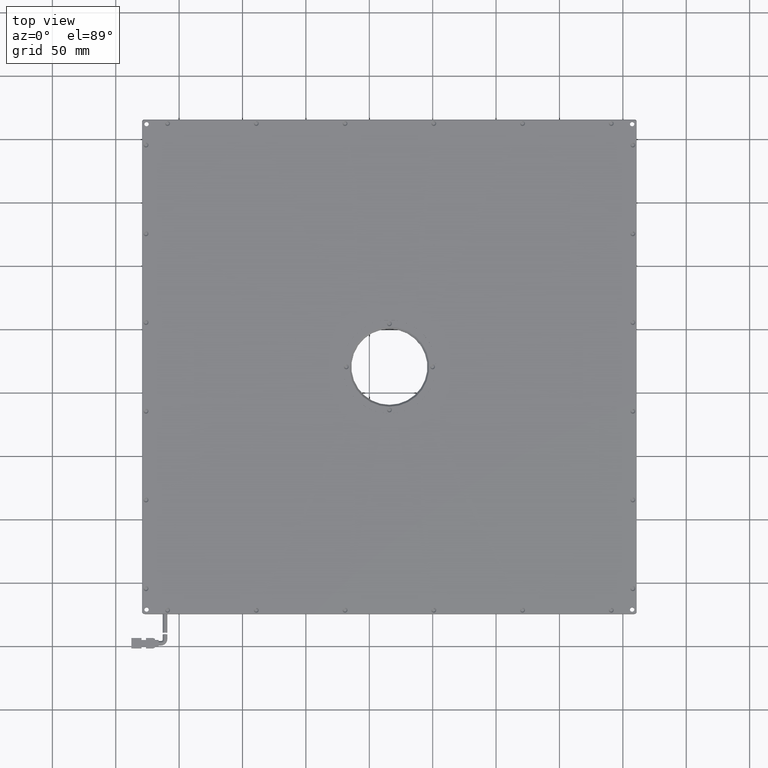
[diagram: clean part render]
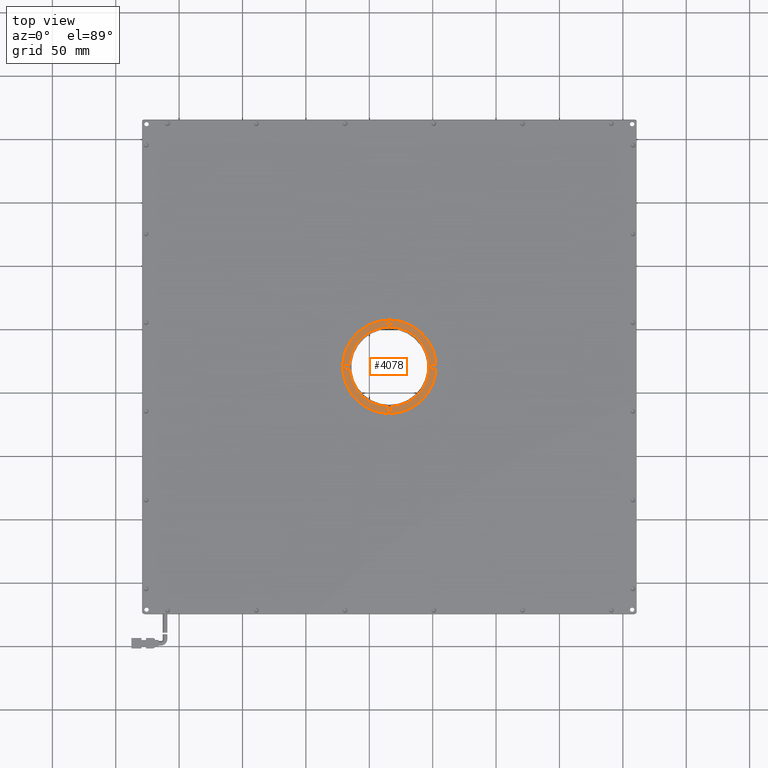
[diagram: same view with one face highlighted and labeled with its STEP entity id]
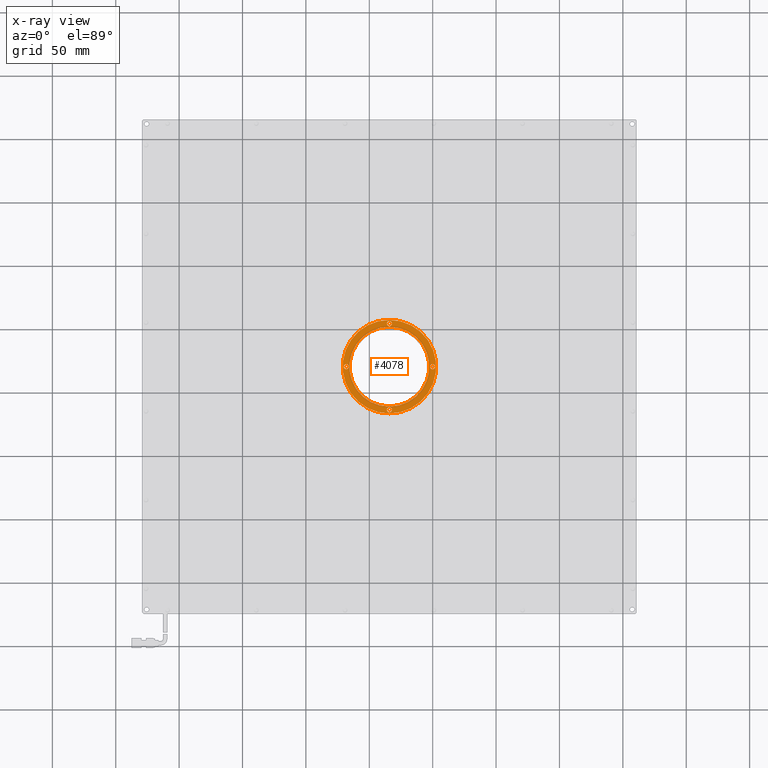
[diagram: x-ray of the same camera — body ghosted, the highlighted face saturated]
A machine part, top view. The second image highlights one B-rep face of the part: STEP entity #4078.
The next image is the same camera in x-ray: the body ghosted, the highlighted face saturated — about 0% of this face is hidden behind the body in this view.
In plain terms, the highlighted planar face has unit normal (0, 0, -1).
Its self-contained STEP definition (entity closure, byte-faithful):
#392 = CIRCLE ( 'NONE', #4062, 31.49999999999998600 ) ;
#519 = CARTESIAN_POINT ( 'NONE',  ( -68.14840179853887000, 20.42297297297205100, 8.249999999980790500 ) ) ;
#664 = DIRECTION ( 'NONE',  ( 2.168404344969532500E-016, 0.0000000000000000000, 1.000000000000000000 ) ) ;
#878 = DIRECTION ( 'NONE',  ( 2.168404345083914800E-016, 0.0000000000000000000, 1.000000000000000000 ) ) ;
#1251 = VERTEX_POINT ( 'NONE', #10514 ) ;
#1397 = CARTESIAN_POINT ( 'NONE',  ( -34.14840179853886300, -16.47702702702795800, 8.249999999999996400 ) ) ;
#1462 = ORIENTED_EDGE ( 'NONE', *, *, #7119, .F. ) ;
#1699 = DIRECTION ( 'NONE',  ( 0.0000000000000000000, -1.000000000000000000, 0.0000000000000000000 ) ) ;
#2075 = DIRECTION ( 'NONE',  ( 1.000000000000000000, 0.0000000000000000000, 0.0000000000000000000 ) ) ;
#2079 = FACE_BOUND ( 'NONE', #10461, .T. ) ;
#2294 = CARTESIAN_POINT ( 'NONE',  ( -34.14840179853887000, 20.42297297297205100, 8.250000000000003600 ) ) ;
#2307 = EDGE_CURVE ( 'NONE', #4382, #8983, #12123, .T. ) ;
#2327 = FACE_BOUND ( 'NONE', #18106, .T. ) ;
#2427 = EDGE_CURVE ( 'NONE', #5036, #12089, #8092, .T. ) ;
#2758 = VERTEX_POINT ( 'NONE', #8401 ) ;
#2831 = AXIS2_PLACEMENT_3D ( 'NONE', #15455, #11867, #3517 ) ;
#2938 = ORIENTED_EDGE ( 'NONE', *, *, #6098, .F. ) ;
#3003 = ORIENTED_EDGE ( 'NONE', *, *, #4992, .F. ) ;
#3041 = AXIS2_PLACEMENT_3D ( 'NONE', #17248, #15624, #19166 ) ;
#3238 = ORIENTED_EDGE ( 'NONE', *, *, #10233, .F. ) ;
#3274 = VERTEX_POINT ( 'NONE', #20883 ) ;
#3360 = CARTESIAN_POINT ( 'NONE',  ( -68.14840179853887000, 20.42297297297205100, 8.249999999980790500 ) ) ;
#3397 = FACE_BOUND ( 'NONE', #10044, .T. ) ;
#3517 = DIRECTION ( 'NONE',  ( 0.0000000000000000000, 1.000000000000000000, 0.0000000000000000000 ) ) ;
#3595 = CARTESIAN_POINT ( 'NONE',  ( -34.14840179853887000, 20.42297297297205100, 8.250000000000003600 ) ) ;
#4062 = AXIS2_PLACEMENT_3D ( 'NONE', #3595, #13866, #13567 ) ;
#4078 = ADVANCED_FACE ( 'NONE', ( #6577, #2079, #20988, #3397, #2327, #17273 ), #5317, .F. ) ;
#4382 = VERTEX_POINT ( 'NONE', #21670 ) ;
#4500 = CARTESIAN_POINT ( 'NONE',  ( -34.14840179853887000, 20.42297297297205100, 8.249999999999996400 ) ) ;
#4584 = CIRCLE ( 'NONE', #21787, 2.000000000074581200 ) ;
#4635 = AXIS2_PLACEMENT_3D ( 'NONE', #519, #14215, #7438 ) ;
#4992 = EDGE_CURVE ( 'NONE', #16777, #8087, #392, .T. ) ;
#5028 = DIRECTION ( 'NONE',  ( 2.168404345083914800E-016, 0.0000000000000000000, 1.000000000000000000 ) ) ;
#5036 = VERTEX_POINT ( 'NONE', #17613 ) ;
#5306 = CIRCLE ( 'NONE', #19750, 1.999999999952706300 ) ;
#5317 = PLANE ( 'NONE',  #3041 ) ;
#5517 = DIRECTION ( 'NONE',  ( 1.000000000000000000, 0.0000000000000000000, 0.0000000000000000000 ) ) ;
#5817 = EDGE_CURVE ( 'NONE', #17858, #2758, #9639, .T. ) ;
#5847 = ORIENTED_EDGE ( 'NONE', *, *, #10017, .F. ) ;
#6035 = CIRCLE ( 'NONE', #2831, 36.90000000000001300 ) ;
#6098 = EDGE_CURVE ( 'NONE', #3274, #1251, #4584, .T. ) ;
#6570 = ORIENTED_EDGE ( 'NONE', *, *, #5817, .F. ) ;
#6577 = FACE_OUTER_BOUND ( 'NONE', #10483, .T. ) ;
#6672 = EDGE_CURVE ( 'NONE', #1251, #3274, #10716, .T. ) ;
#6753 = DIRECTION ( 'NONE',  ( 1.000000000000000000, 0.0000000000000000000, 0.0000000000000000000 ) ) ;
#6881 = CARTESIAN_POINT ( 'NONE',  ( -0.1484017985388663700, 20.42297297297205100, 8.249999999980790500 ) ) ;
#7119 = EDGE_CURVE ( 'NONE', #8087, #16777, #19964, .T. ) ;
#7189 = CARTESIAN_POINT ( 'NONE',  ( -34.14840179853875000, 54.42297297297204800, 8.250000000037633900 ) ) ;
#7355 = CIRCLE ( 'NONE', #20717, 2.000000000001361600 ) ;
#7438 = DIRECTION ( 'NONE',  ( 1.000000000000000000, 0.0000000000000000000, 0.0000000000000000000 ) ) ;
#7731 = DIRECTION ( 'NONE',  ( 2.168404344969532500E-016, 0.0000000000000000000, 1.000000000000000000 ) ) ;
#8087 = VERTEX_POINT ( 'NONE', #20040 ) ;
#8092 = CIRCLE ( 'NONE', #10382, 2.000000000001361600 ) ;
#8395 = CARTESIAN_POINT ( 'NONE',  ( -70.14840179849157700, 20.42297297297205100, 8.249999999980790500 ) ) ;
#8401 = CARTESIAN_POINT ( 'NONE',  ( -34.14840179853887000, 57.32297297297206700, 8.249999999999996400 ) ) ;
#8624 = DIRECTION ( 'NONE',  ( 1.000000000000000000, 0.0000000000000000000, 0.0000000000000000000 ) ) ;
#8983 = VERTEX_POINT ( 'NONE', #8395 ) ;
#9094 = CARTESIAN_POINT ( 'NONE',  ( -34.14840179853875000, 54.42297297297204800, 8.250000000037633900 ) ) ;
#9636 = ORIENTED_EDGE ( 'NONE', *, *, #6672, .F. ) ;
#9639 = CIRCLE ( 'NONE', #12074, 36.90000000000001300 ) ;
#10017 = EDGE_CURVE ( 'NONE', #8983, #4382, #17780, .T. ) ;
#10044 = EDGE_LOOP ( 'NONE', ( #9636, #2938 ) ) ;
#10233 = EDGE_CURVE ( 'NONE', #12089, #5036, #7355, .T. ) ;
#10382 = AXIS2_PLACEMENT_3D ( 'NONE', #12858, #7731, #16317 ) ;
#10461 = EDGE_LOOP ( 'NONE', ( #3003, #1462 ) ) ;
#10483 = EDGE_LOOP ( 'NONE', ( #11179, #6570 ) ) ;
#10514 = CARTESIAN_POINT ( 'NONE',  ( -32.14840179846417100, 54.42297297297204800, 8.250000000037633900 ) ) ;
#10638 = CARTESIAN_POINT ( 'NONE',  ( -34.14840179853922600, -13.57702702702795100, 8.249999999923947100 ) ) ;
#10643 = DIRECTION ( 'NONE',  ( 2.168404344828519100E-016, 0.0000000000000000000, 1.000000000000000000 ) ) ;
#10716 = CIRCLE ( 'NONE', #13966, 2.000000000074581200 ) ;
#10792 = DIRECTION ( 'NONE',  ( 1.000000000000000000, 0.0000000000000000000, 0.0000000000000000000 ) ) ;
#10944 = CARTESIAN_POINT ( 'NONE',  ( 1.851598201413839500, 20.42297297297205100, 8.249999999980790500 ) ) ;
#11179 = ORIENTED_EDGE ( 'NONE', *, *, #18457, .F. ) ;
#11867 = DIRECTION ( 'NONE',  ( 0.0000000000000000000, 0.0000000000000000000, -1.000000000000000000 ) ) ;
#11891 = DIRECTION ( 'NONE',  ( 0.0000000000000000000, 0.0000000000000000000, 1.000000000000000000 ) ) ;
#12074 = AXIS2_PLACEMENT_3D ( 'NONE', #4500, #18097, #20009 ) ;
#12089 = VERTEX_POINT ( 'NONE', #17506 ) ;
#12123 = CIRCLE ( 'NONE', #4635, 1.999999999952706300 ) ;
#12266 = DIRECTION ( 'NONE',  ( 2.168404344828519100E-016, 0.0000000000000000000, 1.000000000000000000 ) ) ;
#12858 = CARTESIAN_POINT ( 'NONE',  ( -34.14840179853922600, -13.57702702702795100, 8.249999999923947100 ) ) ;
#13263 = CARTESIAN_POINT ( 'NONE',  ( -34.14840179853887000, -11.07702702702793500, 8.250000000000003600 ) ) ;
#13369 = DIRECTION ( 'NONE',  ( 1.000000000000000000, 0.0000000000000000000, 0.0000000000000000000 ) ) ;
#13567 = DIRECTION ( 'NONE',  ( 0.0000000000000000000, -1.000000000000000000, 0.0000000000000000000 ) ) ;
#13866 = DIRECTION ( 'NONE',  ( 0.0000000000000000000, 0.0000000000000000000, 1.000000000000000000 ) ) ;
#13966 = AXIS2_PLACEMENT_3D ( 'NONE', #9094, #10643, #10792 ) ;
#14215 = DIRECTION ( 'NONE',  ( 2.168404345083914800E-016, 0.0000000000000000000, 1.000000000000000000 ) ) ;
#14523 = EDGE_CURVE ( 'NONE', #17198, #17165, #21807, .T. ) ;
#14962 = CARTESIAN_POINT ( 'NONE',  ( -0.1484017985388663700, 20.42297297297205100, 8.249999999980790500 ) ) ;
#15455 = CARTESIAN_POINT ( 'NONE',  ( -34.14840179853887000, 20.42297297297205100, 8.249999999999996400 ) ) ;
#15584 = AXIS2_PLACEMENT_3D ( 'NONE', #3360, #18489, #6753 ) ;
#15624 = DIRECTION ( 'NONE',  ( 0.0000000000000000000, 0.0000000000000000000, -1.000000000000000000 ) ) ;
#16140 = AXIS2_PLACEMENT_3D ( 'NONE', #14962, #878, #13369 ) ;
#16317 = DIRECTION ( 'NONE',  ( 1.000000000000000000, 0.0000000000000000000, 0.0000000000000000000 ) ) ;
#16591 = EDGE_LOOP ( 'NONE', ( #17320, #3238 ) ) ;
#16679 = EDGE_LOOP ( 'NONE', ( #18382, #5847 ) ) ;
#16777 = VERTEX_POINT ( 'NONE', #13263 ) ;
#17165 = VERTEX_POINT ( 'NONE', #10944 ) ;
#17198 = VERTEX_POINT ( 'NONE', #21301 ) ;
#17248 = CARTESIAN_POINT ( 'NONE',  ( -4.148401798538859700, 20.42297297297205100, 8.250000000000000000 ) ) ;
#17273 = FACE_BOUND ( 'NONE', #16591, .T. ) ;
#17320 = ORIENTED_EDGE ( 'NONE', *, *, #2427, .F. ) ;
#17506 = CARTESIAN_POINT ( 'NONE',  ( -36.14840179854058300, -13.57702702702795100, 8.249999999923947100 ) ) ;
#17613 = CARTESIAN_POINT ( 'NONE',  ( -32.14840179853786100, -13.57702702702795100, 8.249999999923947100 ) ) ;
#17780 = CIRCLE ( 'NONE', #15584, 1.999999999952706300 ) ;
#17858 = VERTEX_POINT ( 'NONE', #1397 ) ;
#18097 = DIRECTION ( 'NONE',  ( 0.0000000000000000000, 0.0000000000000000000, -1.000000000000000000 ) ) ;
#18106 = EDGE_LOOP ( 'NONE', ( #21150, #20752 ) ) ;
#18382 = ORIENTED_EDGE ( 'NONE', *, *, #2307, .F. ) ;
#18457 = EDGE_CURVE ( 'NONE', #2758, #17858, #6035, .T. ) ;
#18489 = DIRECTION ( 'NONE',  ( 2.168404345083914800E-016, 0.0000000000000000000, 1.000000000000000000 ) ) ;
#19166 = DIRECTION ( 'NONE',  ( 0.0000000000000000000, 1.000000000000000000, 0.0000000000000000000 ) ) ;
#19750 = AXIS2_PLACEMENT_3D ( 'NONE', #6881, #5028, #8624 ) ;
#19964 = CIRCLE ( 'NONE', #21526, 31.49999999999998600 ) ;
#20009 = DIRECTION ( 'NONE',  ( 0.0000000000000000000, 1.000000000000000000, 0.0000000000000000000 ) ) ;
#20040 = CARTESIAN_POINT ( 'NONE',  ( -34.14840179853886300, 51.92297297297203300, 8.250000000000003600 ) ) ;
#20717 = AXIS2_PLACEMENT_3D ( 'NONE', #10638, #664, #5517 ) ;
#20752 = ORIENTED_EDGE ( 'NONE', *, *, #14523, .F. ) ;
#20883 = CARTESIAN_POINT ( 'NONE',  ( -36.14840179861333500, 54.42297297297204800, 8.250000000037633900 ) ) ;
#20988 = FACE_BOUND ( 'NONE', #16679, .T. ) ;
#21004 = EDGE_CURVE ( 'NONE', #17165, #17198, #5306, .T. ) ;
#21150 = ORIENTED_EDGE ( 'NONE', *, *, #21004, .F. ) ;
#21301 = CARTESIAN_POINT ( 'NONE',  ( -2.148401798491573100, 20.42297297297205100, 8.249999999980790500 ) ) ;
#21526 = AXIS2_PLACEMENT_3D ( 'NONE', #2294, #11891, #1699 ) ;
#21670 = CARTESIAN_POINT ( 'NONE',  ( -66.14840179858616400, 20.42297297297205100, 8.249999999980790500 ) ) ;
#21787 = AXIS2_PLACEMENT_3D ( 'NONE', #7189, #12266, #2075 ) ;
#21807 = CIRCLE ( 'NONE', #16140, 1.999999999952706300 ) ;